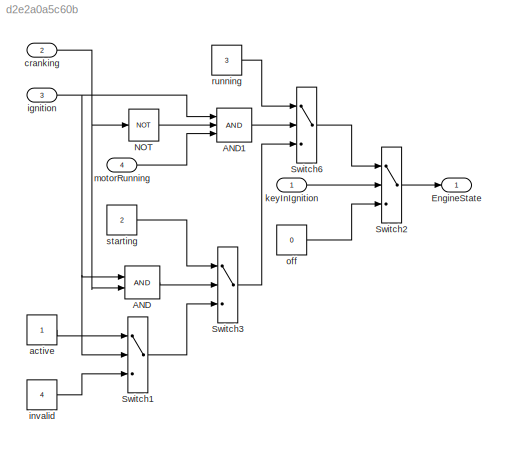
MODEL slx_d2e2a0a5c60b
KIND model
CONFIG AbsTol = auto
CONFIG EnableMultiTasking = off
CONFIG FixedStep = auto
CONFIG MaxStep = auto
CONFIG MinStep = auto
CONFIG RelTol = 1e-3
CONFIG SampleTimeConstraint = Unconstrained
CONFIG Solver = FixedStepAuto
CONFIG SolverName = FixedStepAuto
CONFIG StartTime = 0.0
CONFIG StopTime = 100
BLOCK [Logic] AND
  AllPortsSameDT = off
  OutDataTypeStr = boolean
  Ports = [2, 1]
BLOCK [Logic] AND1
  AllPortsSameDT = off
  Inputs = 3
  OutDataTypeStr = boolean
  Ports = [3, 1]
BLOCK [Outport] EngineState
  IconDisplay = Port number
BLOCK [Logic] NOT
  AllPortsSameDT = off
  Operator = NOT
  OutDataTypeStr = boolean
  Ports = [1, 1]
BLOCK [Switch] Switch1
  Criteria = u2 ~= 0
  InputSameDT = off
  SaturateOnIntegerOverflow = off
BLOCK [Switch] Switch2
  Criteria = u2 ~= 0
  InputSameDT = off
  SaturateOnIntegerOverflow = off
BLOCK [Switch] Switch3
  Criteria = u2 ~= 0
  InputSameDT = off
  SaturateOnIntegerOverflow = off
BLOCK [Switch] Switch6
  Criteria = u2 ~= 0
  InputSameDT = off
  SaturateOnIntegerOverflow = off
BLOCK [Constant] active
BLOCK [Inport] cranking
  IconDisplay = Port number
  Port = 2
BLOCK [Inport] ignition
  IconDisplay = Port number
  Port = 3
BLOCK [Constant] invalid
  Value = 4
BLOCK [Inport] keyInIgnition
  IconDisplay = Port number
BLOCK [Inport] motorRunning
  IconDisplay = Port number
  Port = 4
BLOCK [Constant] off
  Value = 0
BLOCK [Constant] running
  Value = 3
BLOCK [Constant] starting
  Value = 2
LINE AND1:1 -> Switch6:2
LINE AND:1 -> Switch3:2
LINE NOT:1 -> AND1:2
LINE Switch1:1 -> Switch3:3
LINE Switch2:1 -> EngineState:1
LINE Switch3:1 -> Switch6:3
LINE Switch6:1 -> Switch2:1
LINE active:1 -> Switch1:1
NET cranking:1 -> AND:2, NOT:1
NET ignition:1 -> AND1:1, AND:1, Switch1:2
LINE invalid:1 -> Switch1:3
LINE keyInIgnition:1 -> Switch2:2
LINE motorRunning:1 -> AND1:3
LINE off:1 -> Switch2:3
LINE running:1 -> Switch6:1
LINE starting:1 -> Switch3:1
note: NET lines group one-source signal fan-out (src -> all destinations, sorted); 1:1 wires keep LINE
